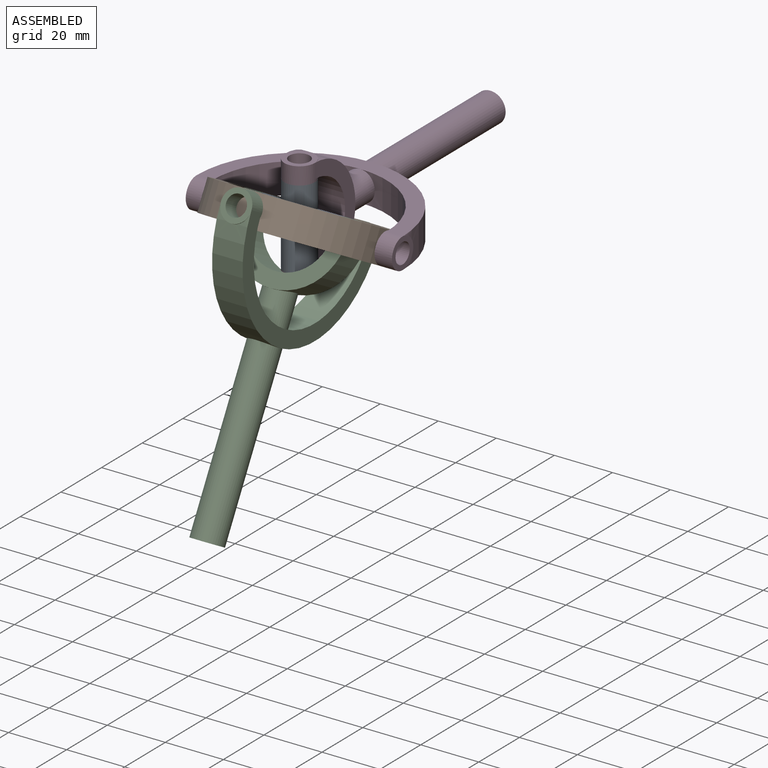
[diagram: assembled view]
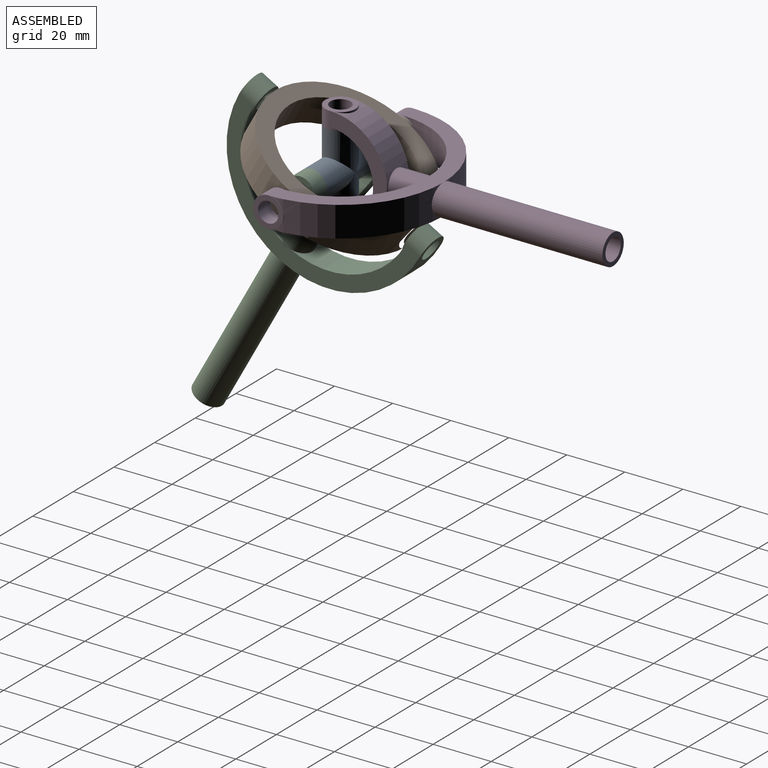
[diagram: assembled view, second angle]
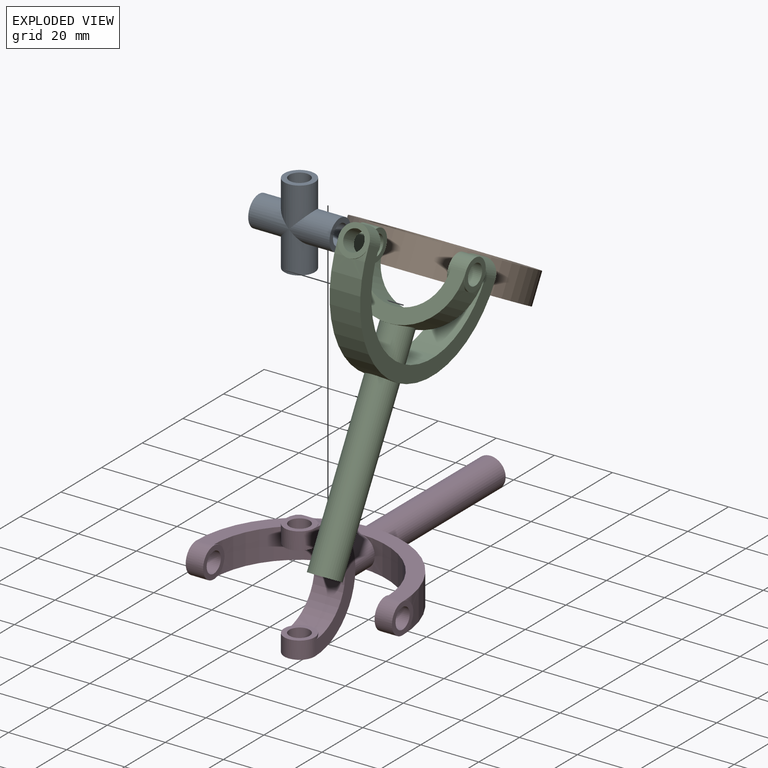
[diagram: exploded view]
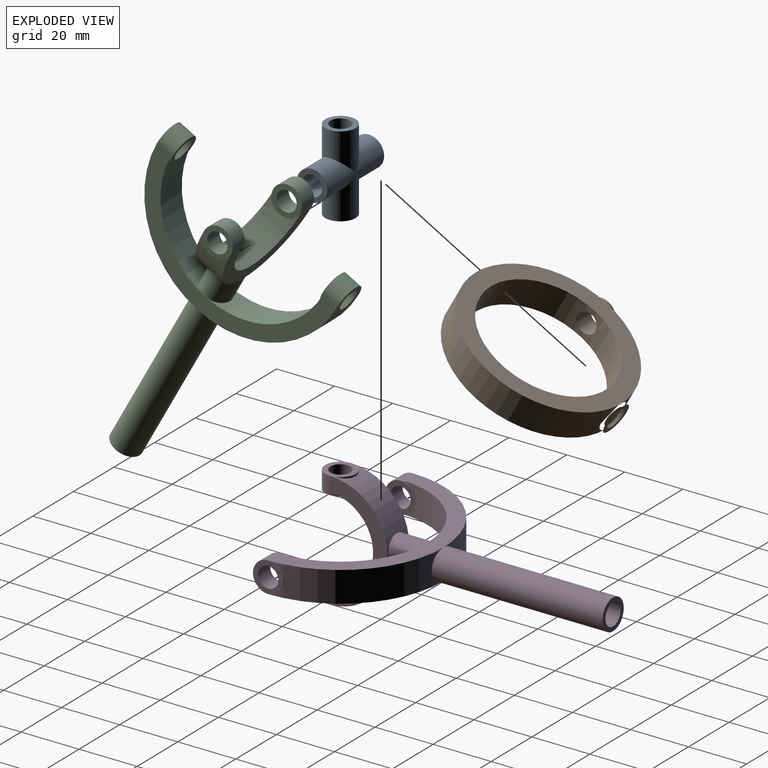
[diagram: exploded view, second angle]
ASSEMBLY  parts=4 mates=4
PART A: 20 faces, bbox 10.5x28x28 mm
  f0: cylinder r=3.5mm len=10.09mm, axis (0,0,1), area 206.6mm2, adj f2,f3
  f1: cylinder r=5.25mm len=14mm, axis (0,0,1), area 351.6mm2, adj f2,f6,f8
  f2: plane 10.5x10.5mm, normal (0,0,-1), area 48.1mm2, adj f0,f1
  f3: cylinder r=5.25mm len=7mm, axis (0,-1,0), area 41.1mm2, adj f0
  f4: cylinder r=3.5mm len=10.09mm, axis (0,-1,0), area 206.6mm2, adj f5,f11
  f5: plane 10.5x10.5mm, normal (0,-1,0), area 48.1mm2, adj f4,f6
  f6: cylinder r=5.25mm len=14mm, axis (0,-1,0), area 351.6mm2, adj f1,f5,f12
  f7: cylinder r=3.5mm len=10.09mm, axis (0,-1,0), area 206.6mm2, adj f9,f10
  f8: cylinder r=5.25mm len=14mm, axis (0,-1,0), area 351.6mm2, adj f1,f9,f12
  f9: plane 10.5x10.5mm, normal (0,1,0), area 48.1mm2, adj f7,f8
  f10: cylinder r=5.25mm len=7mm, axis (0,0,1), area 41.1mm2, adj f7
  f11: cylinder r=5.25mm len=7mm, axis (0,0,1), area 41.1mm2, adj f4
  f12: cylinder r=5.25mm len=14mm, axis (0,0,1), area 351.6mm2, adj f6,f8,f13
  f13: plane 10.5x10.5mm, normal (0,0,1), area 48.1mm2, adj f12,f14
  f14: cylinder r=3.5mm len=10.09mm, axis (0,0,1), area 206.6mm2, adj f13,f15
  f15: cylinder r=5.25mm len=7mm, axis (0,-1,0), area 41.1mm2, adj f14
  f16: cylinder r=3.5mm len=7.02mm, axis (0,-1,0), area 49mm2, adj f17,f18
  f17: cylinder r=3.5mm len=7.02mm, axis (0,0,1), area 49mm2, adj f16,f19
  f18: cylinder r=3.5mm len=7.02mm, axis (0,0,1), area 49mm2, adj f16,f19
  f19: cylinder r=3.5mm len=7.02mm, axis (0,-1,0), area 49mm2, adj f17,f18
PART B: 13 faces, bbox 10.5x58.1x58.1 mm
  f0: cylinder r=28.54mm len=28.54mm, axis (1,0,0), area 383.7mm2, adj f1,f6,f7,f12
  f1: cylinder r=5.25mm len=10.5mm, axis (0,1,0), area 41mm2, adj f0,f2,f5
  f2: plane 10.5x10.5mm, normal (0,1,0), area 48.1mm2, adj f1,f3
  f3: cylinder r=3.5mm len=7.27mm, axis (0,-1,0), area 156.9mm2, adj f2,f4
  f4: cylinder r=22.54mm len=45.07mm, axis (1,0,0), area 1448.1mm2, adj f3,f6,f12
  f5: cylinder r=28.54mm len=57.07mm, axis (1,0,0), area 1325.1mm2, adj f1,f6,f7,f12
  f6: plane 57.07x57.07mm, normal (1,0,0), area 962.7mm2, adj f0,f4,f5
  f7: cylinder r=5.25mm len=10.5mm, axis (0,0,1), area 49mm2, adj f0,f5,f8,f11
  f8: plane 10.5x10.5mm, normal (0,0,1), area 48.1mm2, adj f7,f9
  f9: cylinder r=3.5mm len=7mm, axis (0,0,1), area 24.4mm2, adj f8,f10
  f10: cylinder r=28.54mm len=7mm, axis (1,0,0), area 38.6mm2, adj f9
  f11: cylinder r=28.54mm len=10.51mm, axis (1,0,0), area 87mm2, adj f7
  f12: plane 57.07x57.07mm, normal (-1,0,0), area 962.7mm2, adj f0,f4,f5
PART C: 39 faces, bbox 99.2x71.1x40 mm
  f0: cylinder r=35.54mm len=35.54mm, axis (0,0,-1), area 499.3mm2, adj f18,f19,f24,f27
  f1: cylinder r=30mm len=30mm, axis (0,0,-1), area 407.9mm2, adj f7,f18,f19,f30
  f2: cylinder r=20mm len=20mm, axis (0,1,0), area 242.5mm2, adj f5,f6,f7,f9
  f3: cylinder r=14.95mm len=29.9mm, axis (0,1,0), area 405.2mm2, adj f5,f6,f12,f17
  f4: cylinder r=20mm len=20mm, axis (0,1,0), area 242.5mm2, adj f5,f6,f7,f15
  f5: plane 40x20mm, normal (0,-1,0), area 277.1mm2, adj f2,f3,f4,f12,f17
  f6: plane 40x20mm, normal (0,1,0), area 277.1mm2, adj f2,f3,f4,f12,f17
  f7: cylinder r=5.25mm len=10.7mm, axis (1,0,0), area 333.8mm2, adj f1,f2,f4,f21
  f8: cylinder r=3.5mm len=7mm, axis (0,0,1), area 131.9mm2, adj f10,f11
  f9: cylinder r=5.25mm len=10.5mm, axis (0,0,1), area 5.8mm2, adj f2,f10
  f10: plane 10.5x10.5mm, normal (0,0,1), area 48.1mm2, adj f8,f9,f12
  f11: plane 10.5x10.5mm, normal (0,0,-1), area 48.1mm2, adj f8,f12
  f12: cylinder r=5.25mm len=10.5mm, axis (0,0,1), area 106.9mm2, adj f3,f5,f6,f10,f11
  f13: cylinder r=3.5mm len=7mm, axis (0,0,1), area 131.9mm2, adj f14,f16
  f14: plane 10.5x10.5mm, normal (0,0,-1), area 48.1mm2, adj f13,f15,f17
  f15: cylinder r=5.25mm len=10.5mm, axis (0,0,1), area 5.8mm2, adj f4,f14
  f16: plane 10.5x10.5mm, normal (0,0,1), area 48.1mm2, adj f13,f17
  f17: cylinder r=5.25mm len=10.5mm, axis (0,0,1), area 106.9mm2, adj f3,f5,f6,f14,f16
  f18: plane 71.07x35.54mm, normal (0,0,-1), area 570mm2, adj f0,f1,f20,f21,f30,f35
  f19: plane 71.07x35.54mm, normal (0,0,1), area 570mm2, adj f0,f1,f20,f21,f30,f35
  f20: cylinder r=35.54mm len=35.54mm, axis (0,0,-1), area 499.3mm2, adj f18,f19,f24,f33
  f21: cylinder r=30mm len=30mm, axis (0,0,-1), area 407.9mm2, adj f7,f18,f19,f35
  f22: cylinder r=3.75mm len=58.61mm, axis (1,0,0), area 1378.6mm2, adj f23,f25
  f23: plane 10.5x10.5mm, normal (-1,0,0), area 42.4mm2, adj f22,f24
  f24: cylinder r=5.25mm len=58.8mm, axis (1,0,0), area 1933.2mm2, adj f0,f20,f23
  f25: cylinder r=35.54mm len=7.5mm, axis (0,0,-1), area 44.2mm2, adj f22
  f26: cylinder r=3.5mm len=7mm, axis (0,1,0), area 131.9mm2, adj f28,f29
  f27: cylinder r=5.25mm len=10.5mm, axis (0,1,0), area 3.2mm2, adj f0,f28
  f28: plane 10.5x10.5mm, normal (0,1,0), area 48.1mm2, adj f26,f27,f30
  f29: plane 10.5x10.5mm, normal (0,-1,0), area 48.1mm2, adj f26,f30
  f30: cylinder r=5.25mm len=10.5mm, axis (0,1,0), area 102.8mm2, adj f1,f18,f19,f28,f29
  f31: plane 10.5x10.5mm, normal (0,-1,0), area 48.1mm2, adj f32,f33,f35
  f32: cylinder r=3.5mm len=7mm, axis (0,1,0), area 131.9mm2, adj f31,f34
  f33: cylinder r=5.25mm len=10.5mm, axis (0,1,0), area 3.2mm2, adj f20,f31
  f34: plane 10.5x10.5mm, normal (0,1,0), area 48.1mm2, adj f32,f35
  f35: cylinder r=5.25mm len=10.5mm, axis (0,1,0), area 102.8mm2, adj f18,f19,f21,f31,f34
  f36: cylinder r=30mm len=7.5mm, axis (0,0,-1), area 44.3mm2, adj f38
  f37: cylinder r=20mm len=7.5mm, axis (0,1,0), area 44.4mm2, adj f38
  f38: cylinder r=3.75mm len=10.36mm, axis (1,0,0), area 237mm2, adj f36,f37
PART D: same geometry as C
PLACE A rot(axis=(0,0,1),90deg) t=(0,-93.95,0)mm
PLACE B rot(axis=(-0.65,0.65,0.38),137.9deg) t=(0,-93.95,0)mm
PLACE C rot(axis=(-0.24,-0.94,0.24),93.6deg) t=(0,-93.95,0)mm
PLACE D rot(axis=(0,0,-1),90deg) t=(0,-93.95,0)mm
MATE revolute C.f8 <-> A.f3  axis (-1,0,0) through (14,-93.95,0)mm
MATE revolute B.f7 <-> C.f26  axis (0,0.88,-0.48) through (0,-68.1,-14.29)mm
MATE revolute A.f0 <-> D.f8  axis (0,0,-1) through (0,-93.95,-14)mm
MATE revolute B.f1 <-> D.f26  axis (-1,0,0) through (-29.54,-93.95,0)mm
